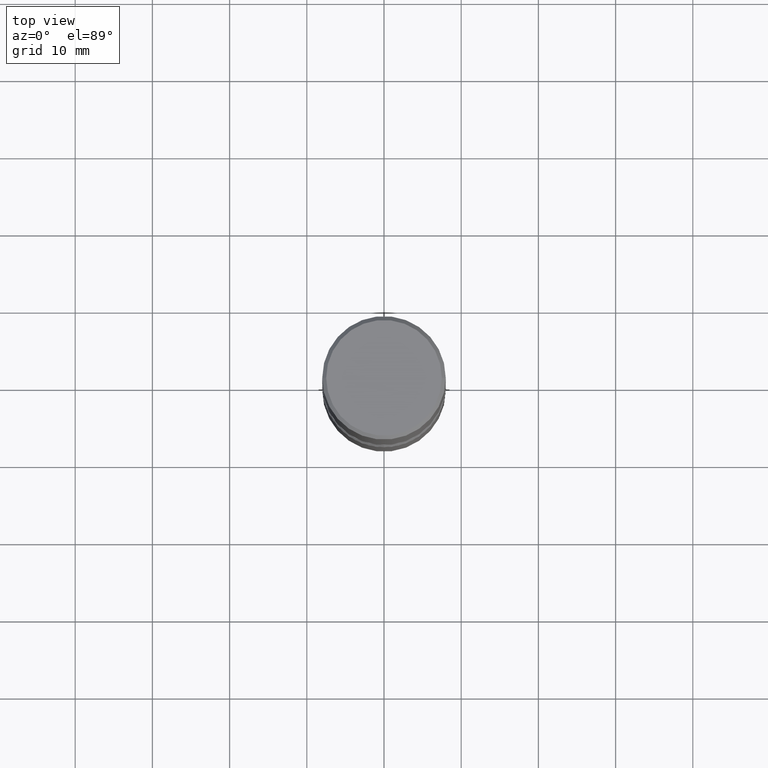
[diagram: clean part render]
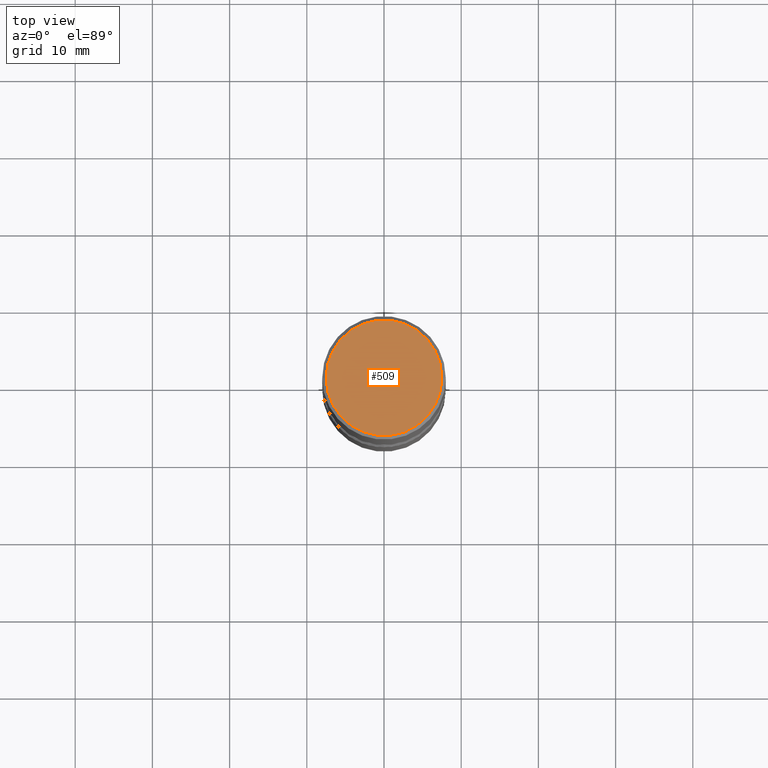
[diagram: same view with one face highlighted and labeled with its STEP entity id]
A machine part, top view. The second image highlights one B-rep face of the part: STEP entity #509.
In plain terms, the highlighted planar face has unit normal (0, -0, -1).
Its self-contained STEP definition (entity closure, byte-faithful):
#18 = EDGE_CURVE ( 'NONE', #180, #232, #198, .T. ) ;
#26 = CARTESIAN_POINT ( 'NONE',  ( -0.2949499999999999345, 2.094539655171995318E-15, 1.280553747028670770E-17 ) ) ;
#54 = CIRCLE ( 'NONE', #296, 0.2949499999999999345 ) ;
#56 = DIRECTION ( 'NONE',  ( -2.445468806185136597E-29, 3.491481338843145583E-15, 1.000000000000000000 ) ) ;
#100 = ORIENTED_EDGE ( 'NONE', *, *, #18, .T. ) ;
#112 = CARTESIAN_POINT ( 'NONE',  ( 0.2949499999999999345, -2.127023677808860075E-15, 1.280553747031587399E-17 ) ) ;
#180 = VERTEX_POINT ( 'NONE', #112 ) ;
#186 = ORIENTED_EDGE ( 'NONE', *, *, #537, .T. ) ;
#198 = CIRCLE ( 'NONE', #502, 0.2949499999999999345 ) ;
#201 = AXIS2_PLACEMENT_3D ( 'NONE', #375, #536, #416 ) ;
#232 = VERTEX_POINT ( 'NONE', #26 ) ;
#285 = PLANE ( 'NONE',  #201 ) ;
#296 = AXIS2_PLACEMENT_3D ( 'NONE', #334, #447, #486 ) ;
#333 = EDGE_LOOP ( 'NONE', ( #186, #100 ) ) ;
#334 = CARTESIAN_POINT ( 'NONE',  ( -3.131554243005659264E-46, 4.471029511141341874E-32, 1.280553747030123384E-17 ) ) ;
#366 = FACE_OUTER_BOUND ( 'NONE', #333, .T. ) ;
#375 = CARTESIAN_POINT ( 'NONE',  ( 2.059624841783564063E-15, 0.2949499999999999345, -1.023409652156634942E-15 ) ) ;
#416 = DIRECTION ( 'NONE',  ( -1.000000000000000000, 6.982962677686265922E-15, -4.876176775795935793E-29 ) ) ;
#447 = DIRECTION ( 'NONE',  ( -2.445468806185136597E-29, 3.491481338843145583E-15, 1.000000000000000000 ) ) ;
#454 = CARTESIAN_POINT ( 'NONE',  ( -3.131554243005659264E-46, 4.471029511141341874E-32, 1.280553747030123384E-17 ) ) ;
#486 = DIRECTION ( 'NONE',  ( 1.000000000000000000, -6.982962677686267499E-15, 4.876053491004735468E-29 ) ) ;
#495 = DIRECTION ( 'NONE',  ( 1.000000000000000000, -6.982962677686267499E-15, 4.876053491004735468E-29 ) ) ;
#502 = AXIS2_PLACEMENT_3D ( 'NONE', #454, #56, #495 ) ;
#509 = ADVANCED_FACE ( 'NONE', ( #366 ), #285, .F. ) ;
#536 = DIRECTION ( 'NONE',  ( 2.438088387897960049E-29, -3.491481338843145188E-15, -1.000000000000000000 ) ) ;
#537 = EDGE_CURVE ( 'NONE', #232, #180, #54, .T. ) ;